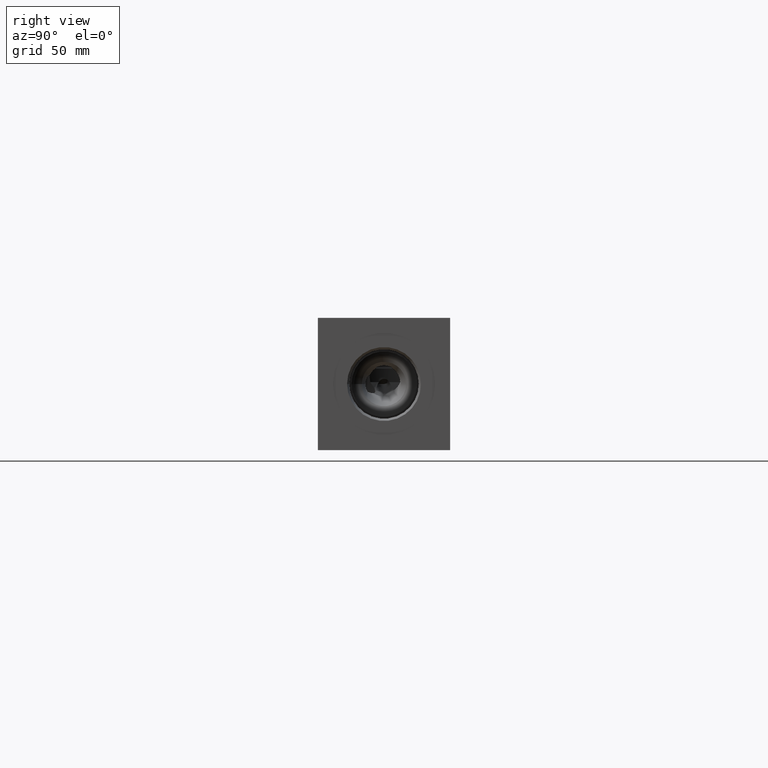
[diagram: clean part render]
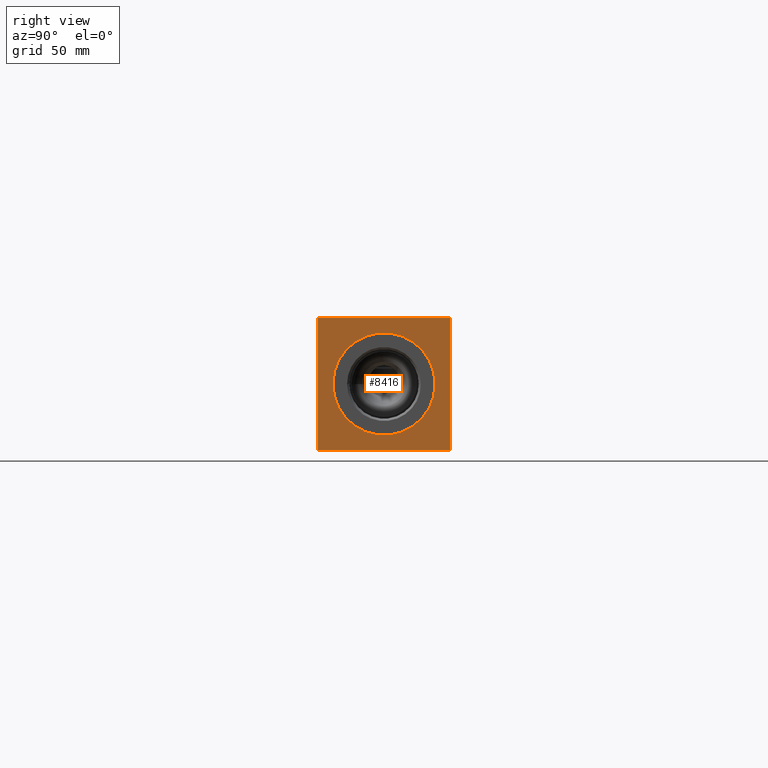
[diagram: same view with one face highlighted and labeled with its STEP entity id]
A machine part, right view. The second image highlights one B-rep face of the part: STEP entity #8416.
In plain terms, the highlighted planar face has unit normal (1, 0, 0).
Its self-contained STEP definition (entity closure, byte-faithful):
#162=CIRCLE('',#8694,24.5618);
#163=CIRCLE('',#8695,24.5618);
#368=FACE_BOUND('',#1596,.T.);
#1115=FACE_OUTER_BOUND('',#1595,.T.);
#1595=EDGE_LOOP('',(#7416,#7417,#7418,#7419));
#1596=EDGE_LOOP('',(#7420,#7421));
#1890=LINE('',#12820,#2644);
#2358=LINE('',#14681,#3112);
#2359=LINE('',#14684,#3113);
#2360=LINE('',#14685,#3114);
#2644=VECTOR('',#9419,10.);
#3112=VECTOR('',#10819,10.);
#3113=VECTOR('',#10822,10.);
#3114=VECTOR('',#10823,10.);
#3415=VERTEX_POINT('',#12817);
#3416=VERTEX_POINT('',#12819);
#3727=VERTEX_POINT('',#13979);
#3728=VERTEX_POINT('',#13980);
#3902=VERTEX_POINT('',#14679);
#3903=VERTEX_POINT('',#14683);
#4352=EDGE_CURVE('',#3415,#3416,#1890,.T.);
#4805=EDGE_CURVE('',#3727,#3728,#162,.T.);
#4806=EDGE_CURVE('',#3728,#3727,#163,.T.);
#5081=EDGE_CURVE('',#3902,#3416,#2358,.T.);
#5082=EDGE_CURVE('',#3903,#3902,#2359,.T.);
#5083=EDGE_CURVE('',#3903,#3415,#2360,.T.);
#7416=ORIENTED_EDGE('',*,*,#5082,.T.);
#7417=ORIENTED_EDGE('',*,*,#5081,.T.);
#7418=ORIENTED_EDGE('',*,*,#4352,.F.);
#7419=ORIENTED_EDGE('',*,*,#5083,.F.);
#7420=ORIENTED_EDGE('',*,*,#4805,.T.);
#7421=ORIENTED_EDGE('',*,*,#4806,.T.);
#7685=PLANE('',#8977);
#8416=ADVANCED_FACE('',(#1115,#368),#7685,.T.);
#8694=AXIS2_PLACEMENT_3D('',#13981,#10176,#10177);
#8695=AXIS2_PLACEMENT_3D('',#13982,#10178,#10179);
#8977=AXIS2_PLACEMENT_3D('',#14682,#10820,#10821);
#9419=DIRECTION('',(0.,1.,0.));
#10176=DIRECTION('center_axis',(-1.,0.,0.));
#10177=DIRECTION('ref_axis',(0.,1.,0.));
#10178=DIRECTION('center_axis',(-1.,0.,0.));
#10179=DIRECTION('ref_axis',(0.,1.,0.));
#10819=DIRECTION('',(0.,0.,1.));
#10820=DIRECTION('center_axis',(1.,0.,0.));
#10821=DIRECTION('ref_axis',(0.,1.,0.));
#10822=DIRECTION('',(0.,1.,0.));
#10823=DIRECTION('',(0.,0.,1.));
#12817=CARTESIAN_POINT('',(339.725,0.,63.5));
#12819=CARTESIAN_POINT('',(339.725,63.5,63.5));
#12820=CARTESIAN_POINT('',(339.725,0.,63.5));
#13979=CARTESIAN_POINT('',(339.725,56.3118,31.75));
#13980=CARTESIAN_POINT('',(339.725,7.1882,31.75));
#13981=CARTESIAN_POINT('Origin',(339.725,31.75,31.75));
#13982=CARTESIAN_POINT('Origin',(339.725,31.75,31.75));
#14679=CARTESIAN_POINT('',(339.725,63.5,0.));
#14681=CARTESIAN_POINT('',(339.725,63.5,0.));
#14682=CARTESIAN_POINT('Origin',(339.725,0.,0.));
#14683=CARTESIAN_POINT('',(339.725,0.,0.));
#14684=CARTESIAN_POINT('',(339.725,0.,0.));
#14685=CARTESIAN_POINT('',(339.725,0.,0.));